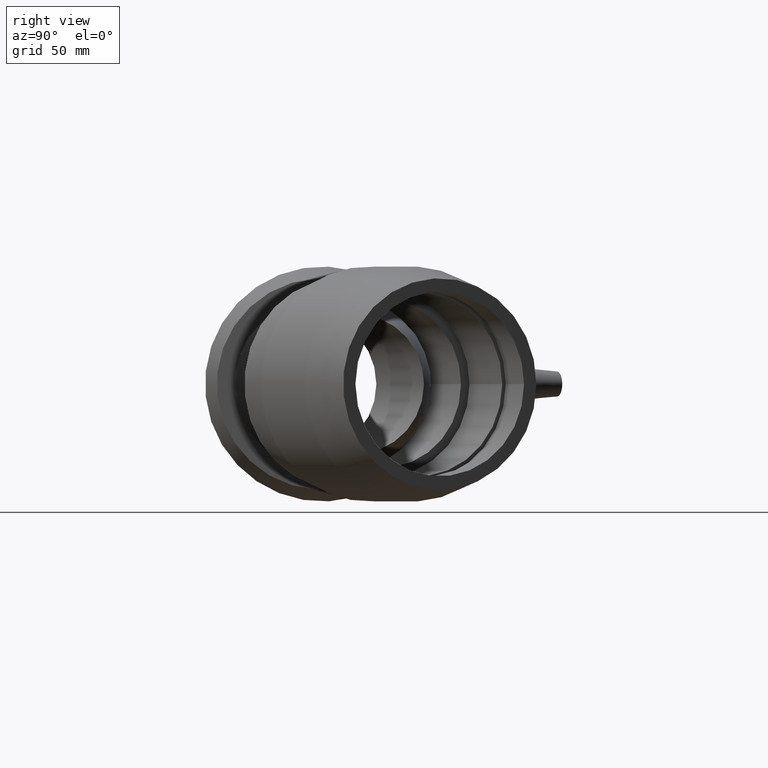
[diagram: clean part render]
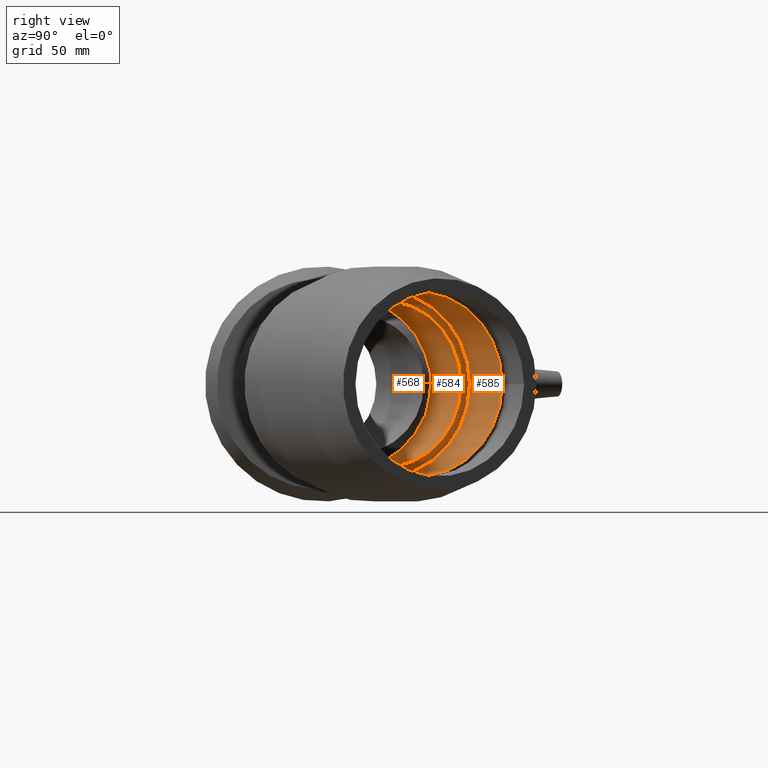
[diagram: same view with one multi-face feature highlighted, each face labeled with its STEP entity id]
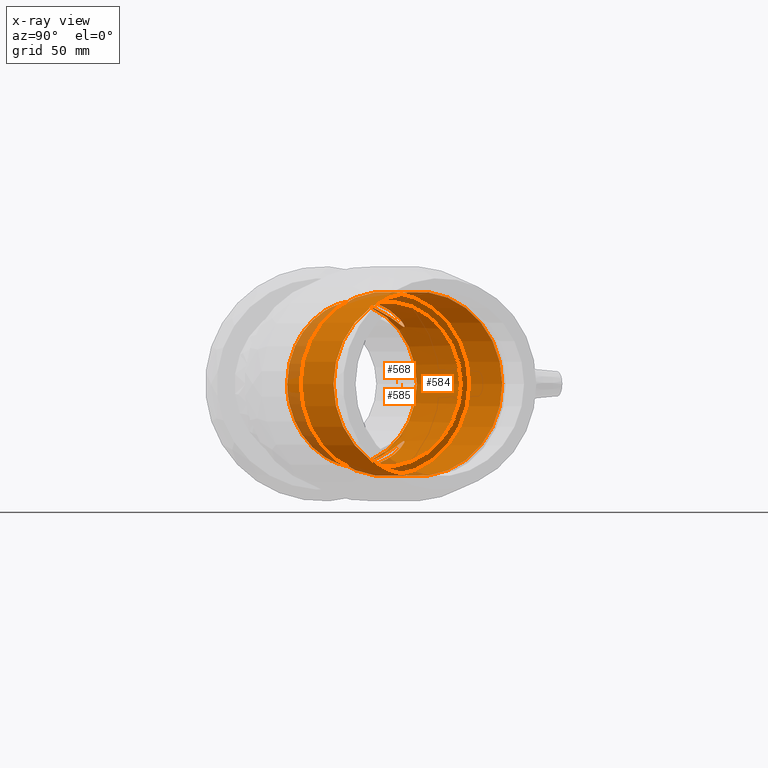
[diagram: x-ray of the same camera — body ghosted, the whole feature saturated]
A machine part, right view. The highlighted faces form ONE feature: a stepped (counterbored) hole: 2 coaxial cylindrical walls of radii 49.5 -> 55 mm joined by 1 annular planar shoulder face(s). The faces share edges in the B-rep.
The next image is the same camera in x-ray: the body ghosted and the whole hole feature saturated, so the bore chain is visible through the body.
Their STEP definitions:
[1] entity #585 (Cylinder):
#61=CYLINDRICAL_SURFACE('',#680,55.);
#106=FACE_BOUND('',#251,.T.);
#157=FACE_OUTER_BOUND('',#250,.T.);
#250=EDGE_LOOP('',(#526));
#251=EDGE_LOOP('',(#527));
#313=CIRCLE('',#679,55.);
#314=CIRCLE('',#681,55.);
#365=VERTEX_POINT('',#1408);
#366=VERTEX_POINT('',#1411);
#421=EDGE_CURVE('',#365,#365,#313,.T.);
#422=EDGE_CURVE('',#366,#366,#314,.T.);
#526=ORIENTED_EDGE('',*,*,#422,.T.);
#527=ORIENTED_EDGE('',*,*,#421,.F.);
#585=ADVANCED_FACE('',(#157,#106),#61,.F.);
#679=AXIS2_PLACEMENT_3D('',#1409,#865,#866);
#680=AXIS2_PLACEMENT_3D('',#1410,#867,#868);
#681=AXIS2_PLACEMENT_3D('',#1412,#869,#870);
#865=DIRECTION('center_axis',(0.913545457642601,0.4067366430758,1.19788532833232E-16));
#866=DIRECTION('ref_axis',(1.19788532833232E-16,2.54618386665284E-17,-1.));
#867=DIRECTION('center_axis',(0.913545457642601,0.4067366430758,1.19788532833232E-16));
#868=DIRECTION('ref_axis',(-0.4067366430758,0.913545457642601,-2.54618386665283E-17));
#869=DIRECTION('center_axis',(0.913545457642601,0.4067366430758,1.19788532833232E-16));
#870=DIRECTION('ref_axis',(1.19788532833232E-16,2.54618386665284E-17,-1.));
#1408=CARTESIAN_POINT('',(160.610870971285,87.5234646317918,9.57852747525821E-15));
#1409=CARTESIAN_POINT('Origin',(182.981386340454,37.2784644614488,1.09789286019173E-14));
#1410=CARTESIAN_POINT('Origin',(204.906477323877,47.040143895268,1.38538533899148E-14));
#1411=CARTESIAN_POINT('',(204.46105293813,107.04682349943,1.53283770512533E-14));
#1412=CARTESIAN_POINT('Origin',(226.831568307299,56.8018233290871,1.67287781779124E-14));
[2] entity #568 (Cylinder):
#55=CYLINDRICAL_SURFACE('',#647,49.5);
#90=FACE_BOUND('',#218,.T.);
#140=FACE_OUTER_BOUND('',#217,.T.);
#217=EDGE_LOOP('',(#490,#491,#492));
#218=EDGE_LOOP('',(#493));
#263=B_SPLINE_CURVE_WITH_KNOTS('',3,(#894,#895,#896,#897,#898,#899,#900,
#901,#902,#903,#904,#905,#906,#907,#908,#909,#910,#911,#912,#913,#914,#915,
#916,#917,#918,#919,#920,#921,#922,#923,#924,#925,#926,#927,#928,#929,#930,
#931,#932,#933,#934,#935,#936,#937,#938,#939,#940,#941,#942,#943,#944,#945,
#946,#947,#948,#949,#950,#951,#952,#953,#954,#955),.UNSPECIFIED.,.F.,.F.,
(4,2,2,2,2,2,2,2,2,2,2,2,2,2,2,2,2,2,2,2,2,2,2,2,2,2,2,2,2,2,4),(-26.4216043706736,
-26.4027787944655,-25.5228865223113,-24.7851862467935,-24.0474859712757,
-23.7934839290709,-23.5394818868661,-23.3465659546162,-23.2298299736311,
-23.1714619831385,-23.113093992646,-23.0547260021534,-22.9963580116609,
-22.8796220306757,-22.6867060984259,-22.432704056221,-22.1787020140162,
-21.4410017384984,-20.7033014629806,-19.8234091908264,-18.9435169186722,
-18.063624646518,-17.1837323743638,-16.4774935387559,-15.771254703148,-15.06501586754,
-14.3587770319321,-13.6582195230298,-12.9576620141276,-12.2571045052253,
-11.556546996323),.UNSPECIFIED.);
#264=B_SPLINE_CURVE_WITH_KNOTS('',3,(#958,#959,#960,#961,#962,#963,#964,
#965,#966,#967,#968,#969,#970,#971,#972,#973,#974,#975,#976,#977,#978,#979,
#980,#981,#982,#983,#984,#985,#986,#987,#988,#989,#990,#991,#992,#993,#994,
#995,#996,#997,#998,#999,#1000,#1001,#1002,#1003,#1004,#1005,#1006,#1007,
#1008,#1009,#1010,#1011,#1012,#1013,#1014,#1015,#1016,#1017,#1018,#1019,
#1020),.UNSPECIFIED.,.F.,.F.,(4,2,2,2,2,2,2,2,2,2,2,2,2,2,2,2,2,2,2,2,3,
2,2,2,2,2,2,2,2,2,4),(-11.556546996323,-10.8559894874207,-10.1554319785184,
-9.45487446961616,-8.75431696071389,-8.04807812510595,-7.34183928949802,
-6.63560045389008,-5.92936161828215,-5.04946934612795,-4.16957707397376,
-3.28968480181956,-2.40979252966537,-1.67209225414759,-0.934391978629812,
-0.680389936424973,-0.426387894220142,-0.233471961970253,-0.116735980985126,
-0.0583679904925631,0.,0.0583679904925415,0.116735980985083,0.233471961970166,
0.426387894220058,0.680389936424895,0.934391978629731,1.67209225414751,
2.40979252966529,3.28968480181948,3.30851037802764),.UNSPECIFIED.);
#298=CIRCLE('',#648,49.5);
#299=CIRCLE('',#649,49.5);
#319=VERTEX_POINT('',#891);
#320=VERTEX_POINT('',#893);
#321=VERTEX_POINT('',#956);
#349=VERTEX_POINT('',#1294);
#372=EDGE_CURVE('',#320,#319,#263,.T.);
#374=EDGE_CURVE('',#319,#321,#264,.T.);
#404=EDGE_CURVE('',#320,#321,#298,.T.);
#405=EDGE_CURVE('',#349,#349,#299,.T.);
#490=ORIENTED_EDGE('',*,*,#372,.T.);
#491=ORIENTED_EDGE('',*,*,#374,.T.);
#492=ORIENTED_EDGE('',*,*,#404,.F.);
#493=ORIENTED_EDGE('',*,*,#405,.T.);
#568=ADVANCED_FACE('',(#140,#90),#55,.F.);
#647=AXIS2_PLACEMENT_3D('',#1292,#801,#802);
#648=AXIS2_PLACEMENT_3D('',#1293,#803,#804);
#649=AXIS2_PLACEMENT_3D('',#1295,#805,#806);
#801=DIRECTION('center_axis',(0.913545457642601,0.4067366430758,1.19788532833232E-16));
#802=DIRECTION('ref_axis',(-0.4067366430758,0.913545457642601,-2.54618386665283E-17));
#803=DIRECTION('center_axis',(0.913545457642601,0.4067366430758,1.19788532833232E-16));
#804=DIRECTION('ref_axis',(1.19788532833232E-16,2.54618386665284E-17,-1.));
#805=DIRECTION('center_axis',(0.913545457642601,0.4067366430758,1.19788532833232E-16));
#806=DIRECTION('ref_axis',(1.19788532833232E-16,2.54618386665284E-17,-1.));
#891=CARTESIAN_POINT('',(173.515977345086,-21.1203029275158,0.));
#893=CARTESIAN_POINT('',(120.370724177929,18.5874659717621,-48.7836197819382));
#894=CARTESIAN_POINT('Ctrl Pts',(120.370724177929,18.5874659717621,-48.7836197819382));
#895=CARTESIAN_POINT('Ctrl Pts',(120.357174198134,18.651213614691,-48.772654937535));
#896=CARTESIAN_POINT('Ctrl Pts',(120.343655386112,18.7149249812549,-48.761569323666));
#897=CARTESIAN_POINT('Ctrl Pts',(119.699782042711,21.7546792833952,-48.226607808419));
#898=CARTESIAN_POINT('Ctrl Pts',(119.138649785033,24.6489215177538,-47.4359439953392));
#899=CARTESIAN_POINT('Ctrl Pts',(118.292452906091,29.6565533756434,-45.6245991545694));
#900=CARTESIAN_POINT('Ctrl Pts',(117.929506465833,32.1059231374084,-44.5488383720135));
#901=CARTESIAN_POINT('Ctrl Pts',(117.421061434056,36.8357750039953,-42.0391507792163));
#902=CARTESIAN_POINT('Ctrl Pts',(117.274846105369,39.1161740645011,-40.6052127183004));
#903=CARTESIAN_POINT('Ctrl Pts',(117.318576723649,41.8246295289527,-38.7105254568418));
#904=CARTESIAN_POINT('Ctrl Pts',(117.352702696497,42.5779472936525,-38.1644613233439));
#905=CARTESIAN_POINT('Ctrl Pts',(117.501562632351,44.0621248081816,-37.0560773076256));
#906=CARTESIAN_POINT('Ctrl Pts',(117.616867764182,44.7931184077665,-36.4940134588497));
#907=CARTESIAN_POINT('Ctrl Pts',(117.909041730179,45.9528307408403,-35.605764076196));
#908=CARTESIAN_POINT('Ctrl Pts',(118.105472659301,46.5458224919437,-35.1527292167635));
#909=CARTESIAN_POINT('Ctrl Pts',(118.501794344105,47.3216050480775,-34.5991303179622));
#910=CARTESIAN_POINT('Ctrl Pts',(118.697029092651,47.6358746913057,-34.3847977815054));
#911=CARTESIAN_POINT('Ctrl Pts',(119.07307806355,48.0539096994347,-34.1455814995888));
#912=CARTESIAN_POINT('Ctrl Pts',(119.212489124053,48.1845766407672,-34.0795668058149));
#913=CARTESIAN_POINT('Ctrl Pts',(119.518620491608,48.4148948176583,-33.9888575539117));
#914=CARTESIAN_POINT('Ctrl Pts',(119.685455977532,48.5144581289807,-33.9643285954374));
#915=CARTESIAN_POINT('Ctrl Pts',(120.040934728107,48.6727274657542,-33.9643285954373));
#916=CARTESIAN_POINT('Ctrl Pts',(120.226559417583,48.7300895349491,-33.9888575539116));
#917=CARTESIAN_POINT('Ctrl Pts',(120.602561046551,48.8034765353055,-34.0795668058147));
#918=CARTESIAN_POINT('Ctrl Pts',(120.79294971531,48.8196458938472,-34.1455814995886));
#919=CARTESIAN_POINT('Ctrl Pts',(121.355236144388,48.819384722229,-34.3847977815053));
#920=CARTESIAN_POINT('Ctrl Pts',(121.719421549235,48.7541849784309,-34.5991303179622));
#921=CARTESIAN_POINT('Ctrl Pts',(122.561131310787,48.5296095355286,-35.1527292167635));
#922=CARTESIAN_POINT('Ctrl Pts',(123.133248008882,48.2787972340878,-35.605764076196));
#923=CARTESIAN_POINT('Ctrl Pts',(124.190584771278,47.7199257884262,-36.4940134588497));
#924=CARTESIAN_POINT('Ctrl Pts',(124.810973075044,47.3164840099623,-37.0560773076256));
#925=CARTESIAN_POINT('Ctrl Pts',(126.013538654198,46.4339999007725,-38.1644613233439));
#926=CARTESIAN_POINT('Ctrl Pts',(126.596197585879,45.9552924682342,-38.7105254568418));
#927=CARTESIAN_POINT('Ctrl Pts',(128.638233744448,44.1754802036991,-40.6052127183004));
#928=CARTESIAN_POINT('Ctrl Pts',(130.235063354743,42.5409362326836,-42.0391507792163));
#929=CARTESIAN_POINT('Ctrl Pts',(133.409812162258,38.9981992908019,-44.5488383720135));
#930=CARTESIAN_POINT('Ctrl Pts',(134.98719005475,37.0895292479124,-45.6245991545694));
#931=CARTESIAN_POINT('Ctrl Pts',(138.14236952713,33.1099226744996,-47.4359439953392));
#932=CARTESIAN_POINT('Ctrl Pts',(139.917739899444,30.756294079572,-48.226607808419));
#933=CARTESIAN_POINT('Ctrl Pts',(143.497435801571,25.8365852556887,-49.2741190023348));
#934=CARTESIAN_POINT('Ctrl Pts',(145.301843176563,23.2706017685642,-49.5311410344302));
#935=CARTESIAN_POINT('Ctrl Pts',(148.845383110269,18.1083726827712,-49.4627526058047));
#936=CARTESIAN_POINT('Ctrl Pts',(150.587082594233,15.5085659783997,-49.1373100014883));
#937=CARTESIAN_POINT('Ctrl Pts',(153.917887701546,10.4536842730605,-47.9440128486289));
#938=CARTESIAN_POINT('Ctrl Pts',(155.507052268063,7.99868931785595,-47.0759837554859));
#939=CARTESIAN_POINT('Ctrl Pts',(158.160004538146,3.85377957078959,-45.1433604354844));
#940=CARTESIAN_POINT('Ctrl Pts',(159.348560522427,1.97841403654898,-44.0907727555353));
#941=CARTESIAN_POINT('Ctrl Pts',(161.652916140264,-1.6874440384297,-41.6122743637327));
#942=CARTESIAN_POINT('Ctrl Pts',(162.768798434762,-3.47788770610147,-40.1863682194819));
#943=CARTESIAN_POINT('Ctrl Pts',(164.860326658159,-6.85489262582399,-37.028226103751));
#944=CARTESIAN_POINT('Ctrl Pts',(165.83704352925,-8.44305194740897,-35.2944487343534));
#945=CARTESIAN_POINT('Ctrl Pts',(167.605838751776,-11.3323127966945,-31.6333153843156));
#946=CARTESIAN_POINT('Ctrl Pts',(168.397943658528,-12.6333718920213,-29.7059387470813));
#947=CARTESIAN_POINT('Ctrl Pts',(169.770031344728,-14.8940459231892,-25.8334122928521));
#948=CARTESIAN_POINT('Ctrl Pts',(170.407525339166,-15.9485089038064,-23.7306912558903));
#949=CARTESIAN_POINT('Ctrl Pts',(171.524681559344,-17.8009643411134,-19.2802508786075));
#950=CARTESIAN_POINT('Ctrl Pts',(172.004388899315,-18.5989461135574,-16.9325384158318));
#951=CARTESIAN_POINT('Ctrl Pts',(172.76991732022,-19.8741796182914,-12.1238996316517));
#952=CARTESIAN_POINT('Ctrl Pts',(173.056129378608,-20.3520389486566,-9.66062754443355));
#953=CARTESIAN_POINT('Ctrl Pts',(173.429165066596,-20.9751108472103,-4.76627531343836));
#954=CARTESIAN_POINT('Ctrl Pts',(173.515977345086,-21.1203029275158,-2.335191696341));
#955=CARTESIAN_POINT('Ctrl Pts',(173.515977345086,-21.1203029275158,-7.16093850883226E-14));
#956=CARTESIAN_POINT('',(120.370724177929,18.587465971762,48.7836197819382));
#958=CARTESIAN_POINT('Ctrl Pts',(173.515977345086,-21.1203029275158,-7.21644966006352E-14));
#959=CARTESIAN_POINT('Ctrl Pts',(173.515977345086,-21.1203029275158,2.33519169634085));
#960=CARTESIAN_POINT('Ctrl Pts',(173.429165066596,-20.9751108472103,4.76627531343822));
#961=CARTESIAN_POINT('Ctrl Pts',(173.056129378608,-20.3520389486566,9.66062754443342));
#962=CARTESIAN_POINT('Ctrl Pts',(172.76991732022,-19.8741796182915,12.1238996316516));
#963=CARTESIAN_POINT('Ctrl Pts',(172.004388899315,-18.5989461135575,16.9325384158317));
#964=CARTESIAN_POINT('Ctrl Pts',(171.524681559344,-17.8009643411135,19.2802508786074));
#965=CARTESIAN_POINT('Ctrl Pts',(170.407525339166,-15.9485089038064,23.7306912558902));
#966=CARTESIAN_POINT('Ctrl Pts',(169.770031344728,-14.8940459231893,25.833412292852));
#967=CARTESIAN_POINT('Ctrl Pts',(168.397943658528,-12.6333718920214,29.7059387470811));
#968=CARTESIAN_POINT('Ctrl Pts',(167.605838751776,-11.3323127966946,31.6333153843155));
#969=CARTESIAN_POINT('Ctrl Pts',(165.83704352925,-8.44305194740909,35.2944487343533));
#970=CARTESIAN_POINT('Ctrl Pts',(164.860326658159,-6.85489262582414,37.0282261037509));
#971=CARTESIAN_POINT('Ctrl Pts',(162.768798434762,-3.47788770610164,40.1863682194818));
#972=CARTESIAN_POINT('Ctrl Pts',(161.652916140264,-1.68744403842989,41.6122743637326));
#973=CARTESIAN_POINT('Ctrl Pts',(159.348560522427,1.97841403654876,44.0907727555352));
#974=CARTESIAN_POINT('Ctrl Pts',(158.160004538146,3.85377957078942,45.1433604354843));
#975=CARTESIAN_POINT('Ctrl Pts',(155.507052268063,7.99868931785578,47.0759837554859));
#976=CARTESIAN_POINT('Ctrl Pts',(153.917887701546,10.4536842730604,47.9440128486289));
#977=CARTESIAN_POINT('Ctrl Pts',(150.587082594233,15.5085659783996,49.1373100014883));
#978=CARTESIAN_POINT('Ctrl Pts',(148.845383110269,18.108372682771,49.4627526058047));
#979=CARTESIAN_POINT('Ctrl Pts',(145.301843176563,23.270601768564,49.5311410344302));
#980=CARTESIAN_POINT('Ctrl Pts',(143.497435801571,25.8365852556885,49.2741190023348));
#981=CARTESIAN_POINT('Ctrl Pts',(139.917739899444,30.7562940795718,48.226607808419));
#982=CARTESIAN_POINT('Ctrl Pts',(138.14236952713,33.1099226744994,47.4359439953393));
#983=CARTESIAN_POINT('Ctrl Pts',(134.98719005475,37.0895292479123,45.6245991545695));
#984=CARTESIAN_POINT('Ctrl Pts',(133.409812162258,38.9981992908017,44.5488383720136));
#985=CARTESIAN_POINT('Ctrl Pts',(130.235063354743,42.5409362326834,42.0391507792164));
#986=CARTESIAN_POINT('Ctrl Pts',(128.638233744448,44.175480203699,40.6052127183005));
#987=CARTESIAN_POINT('Ctrl Pts',(126.596197585879,45.9552924682341,38.7105254568419));
#988=CARTESIAN_POINT('Ctrl Pts',(126.013538654198,46.4339999007725,38.164461323344));
#989=CARTESIAN_POINT('Ctrl Pts',(124.810973075044,47.3164840099623,37.0560773076257));
#990=CARTESIAN_POINT('Ctrl Pts',(124.190584771278,47.7199257884262,36.4940134588498));
#991=CARTESIAN_POINT('Ctrl Pts',(123.133248008882,48.2787972340878,35.6057640761961));
#992=CARTESIAN_POINT('Ctrl Pts',(122.561131310787,48.5296095355284,35.1527292167636));
#993=CARTESIAN_POINT('Ctrl Pts',(121.719421549235,48.7541849784308,34.5991303179623));
#994=CARTESIAN_POINT('Ctrl Pts',(121.355236144388,48.8193847222289,34.3847977815053));
#995=CARTESIAN_POINT('Ctrl Pts',(120.79294971531,48.8196458938472,34.1455814995887));
#996=CARTESIAN_POINT('Ctrl Pts',(120.602561046551,48.8034765353055,34.0795668058148));
#997=CARTESIAN_POINT('Ctrl Pts',(120.226559417583,48.730089534949,33.9888575539117));
#998=CARTESIAN_POINT('Ctrl Pts',(120.040934728107,48.6727274657541,33.9643285954375));
#999=CARTESIAN_POINT('Ctrl Pts',(119.86319535282,48.5935927973673,33.9643285954375));
#1000=CARTESIAN_POINT('Ctrl Pts',(119.685455977533,48.5144581289806,33.9643285954375));
#1001=CARTESIAN_POINT('Ctrl Pts',(119.518620491608,48.4148948176582,33.9888575539118));
#1002=CARTESIAN_POINT('Ctrl Pts',(119.212489124052,48.1845766407671,34.0795668058149));
#1003=CARTESIAN_POINT('Ctrl Pts',(119.07307806355,48.0539096994347,34.1455814995888));
#1004=CARTESIAN_POINT('Ctrl Pts',(118.697029092651,47.6358746913056,34.3847977815055));
#1005=CARTESIAN_POINT('Ctrl Pts',(118.501794344105,47.3216050480774,34.5991303179624));
#1006=CARTESIAN_POINT('Ctrl Pts',(118.105472659301,46.5458224919436,35.1527292167636));
#1007=CARTESIAN_POINT('Ctrl Pts',(117.909041730179,45.9528307408402,35.6057640761961));
#1008=CARTESIAN_POINT('Ctrl Pts',(117.616867764182,44.7931184077664,36.4940134588498));
#1009=CARTESIAN_POINT('Ctrl Pts',(117.501562632351,44.0621248081816,37.0560773076257));
#1010=CARTESIAN_POINT('Ctrl Pts',(117.352702696497,42.5779472936524,38.164461323344));
#1011=CARTESIAN_POINT('Ctrl Pts',(117.318576723649,41.8246295289526,38.7105254568419));
#1012=CARTESIAN_POINT('Ctrl Pts',(117.274846105369,39.1161740645009,40.6052127183005));
#1013=CARTESIAN_POINT('Ctrl Pts',(117.421061434056,36.8357750039952,42.0391507792164));
#1014=CARTESIAN_POINT('Ctrl Pts',(117.929506465833,32.1059231374082,44.5488383720136));
#1015=CARTESIAN_POINT('Ctrl Pts',(118.292452906091,29.6565533756432,45.6245991545695));
#1016=CARTESIAN_POINT('Ctrl Pts',(119.138649785033,24.6489215177537,47.4359439953393));
#1017=CARTESIAN_POINT('Ctrl Pts',(119.699782042711,21.7546792833951,48.226607808419));
#1018=CARTESIAN_POINT('Ctrl Pts',(120.343655386112,18.7149249812548,48.761569323666));
#1019=CARTESIAN_POINT('Ctrl Pts',(120.357174198134,18.6512136146909,48.7726549375351));
#1020=CARTESIAN_POINT('Ctrl Pts',(120.370724177929,18.587465971762,48.7836197819382));
#1292=CARTESIAN_POINT('Origin',(153.382513512834,24.1001972257928,7.09778013812055E-15));
#1293=CARTESIAN_POINT('Origin',(123.783640685214,10.9219299901369,3.21663167432382E-15));
#1294=CARTESIAN_POINT('',(162.847922508202,82.4989646147575,9.71856758792411E-15));
#1295=CARTESIAN_POINT('Origin',(182.981386340454,37.2784644614488,1.09789286019173E-14));
[3] entity #584 (Plane):
#42=PLANE('',#678);
#105=FACE_BOUND('',#249,.T.);
#156=FACE_OUTER_BOUND('',#248,.T.);
#248=EDGE_LOOP('',(#524));
#249=EDGE_LOOP('',(#525));
#299=CIRCLE('',#649,49.5);
#313=CIRCLE('',#679,55.);
#349=VERTEX_POINT('',#1294);
#365=VERTEX_POINT('',#1408);
#405=EDGE_CURVE('',#349,#349,#299,.T.);
#421=EDGE_CURVE('',#365,#365,#313,.T.);
#524=ORIENTED_EDGE('',*,*,#421,.T.);
#525=ORIENTED_EDGE('',*,*,#405,.F.);
#584=ADVANCED_FACE('',(#156,#105),#42,.F.);
#649=AXIS2_PLACEMENT_3D('',#1295,#805,#806);
#678=AXIS2_PLACEMENT_3D('',#1407,#863,#864);
#679=AXIS2_PLACEMENT_3D('',#1409,#865,#866);
#805=DIRECTION('center_axis',(0.913545457642601,0.4067366430758,1.19788532833232E-16));
#806=DIRECTION('ref_axis',(1.19788532833232E-16,2.54618386665284E-17,-1.));
#863=DIRECTION('center_axis',(-0.913545457642601,-0.4067366430758,-1.19788532833232E-16));
#864=DIRECTION('ref_axis',(0.,0.,1.));
#865=DIRECTION('center_axis',(0.913545457642601,0.4067366430758,1.19788532833232E-16));
#866=DIRECTION('ref_axis',(1.19788532833232E-16,2.54618386665284E-17,-1.));
#1294=CARTESIAN_POINT('',(162.847922508202,82.4989646147575,9.71856758792411E-15));
#1295=CARTESIAN_POINT('Origin',(182.981386340454,37.2784644614488,1.09789286019173E-14));
#1407=CARTESIAN_POINT('Origin',(160.610870971285,87.5234646317918,9.57852747525821E-15));
#1408=CARTESIAN_POINT('',(160.610870971285,87.5234646317918,9.57852747525821E-15));
#1409=CARTESIAN_POINT('Origin',(182.981386340454,37.2784644614488,1.09789286019173E-14));